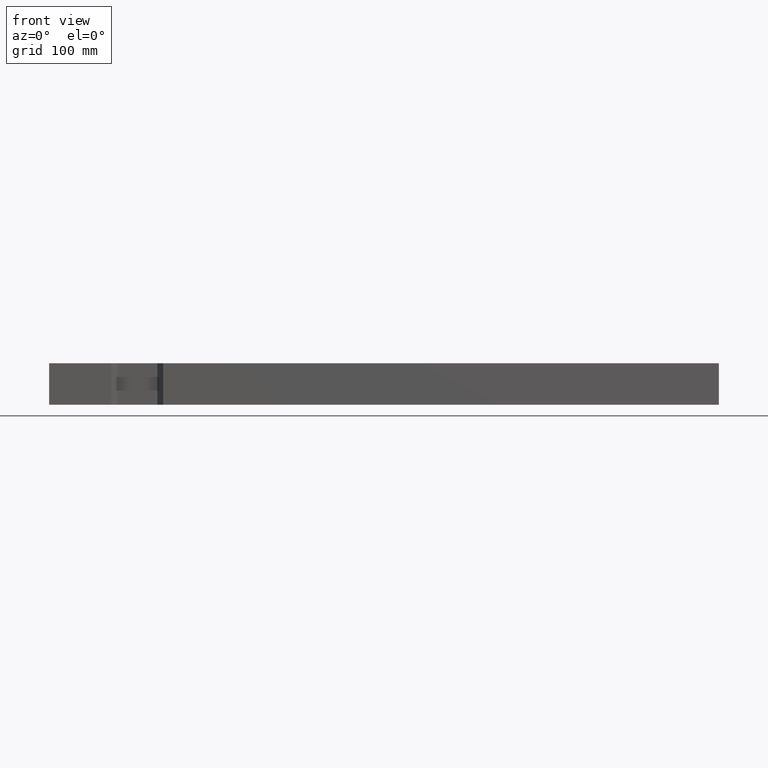
[diagram: clean part render]
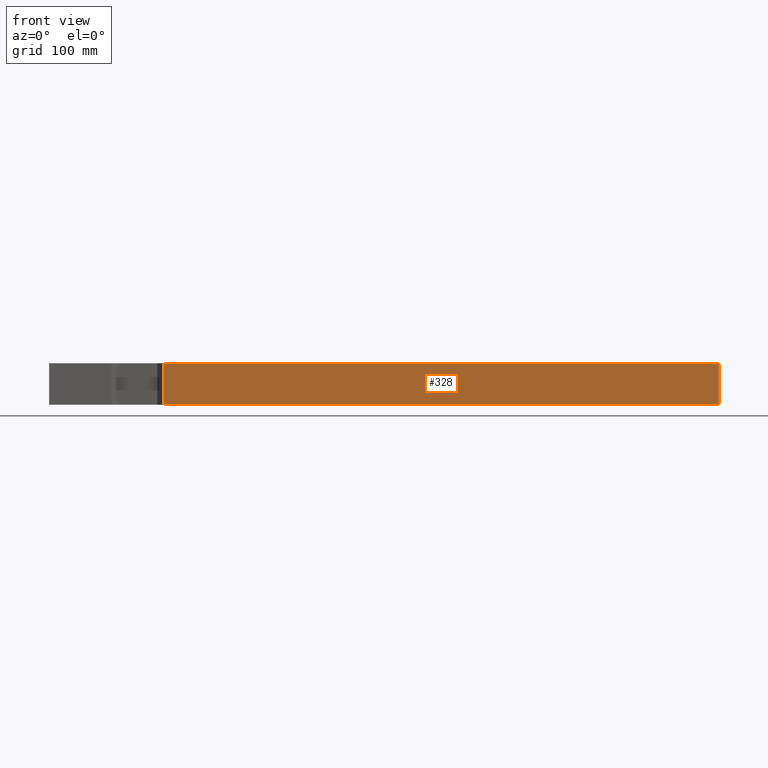
[diagram: same view with one face highlighted and labeled with its STEP entity id]
A machine part, front view. The second image highlights one B-rep face of the part: STEP entity #328.
In plain terms, the highlighted planar face has unit normal (0, -1, 0).
Its self-contained STEP definition (entity closure, byte-faithful):
#22=FACE_OUTER_BOUND($,#39,.T.);
#39=EDGE_LOOP($,(#248,#249,#250,#251));
#74=LINE($,#494,#119);
#75=LINE($,#497,#120);
#76=LINE($,#499,#121);
#77=LINE($,#500,#122);
#119=VECTOR($,#403,40.);
#120=VECTOR($,#406,535.);
#121=VECTOR($,#407,535.);
#122=VECTOR($,#408,40.);
#155=VERTEX_POINT($,#490);
#156=VERTEX_POINT($,#492);
#157=VERTEX_POINT($,#496);
#158=VERTEX_POINT($,#498);
#194=EDGE_CURVE($,#155,#156,#74,.T.);
#195=EDGE_CURVE($,#155,#157,#75,.T.);
#196=EDGE_CURVE($,#158,#156,#76,.T.);
#197=EDGE_CURVE($,#157,#158,#77,.T.);
#248=ORIENTED_EDGE($,*,*,#195,.F.);
#249=ORIENTED_EDGE($,*,*,#194,.T.);
#250=ORIENTED_EDGE($,*,*,#196,.F.);
#251=ORIENTED_EDGE($,*,*,#197,.F.);
#311=PLANE($,#348);
#328=ADVANCED_FACE($,(#22),#311,.T.);
#348=AXIS2_PLACEMENT_3D($,#495,#404,#405);
#403=DIRECTION($,(0.,0.,1.));
#404=DIRECTION('center_axis',(2.65623452620598E-016,-1.,0.));
#405=DIRECTION('ref_axis',(1.,0.,0.));
#406=DIRECTION($,(-1.,-2.65623452620598E-016,0.));
#407=DIRECTION($,(1.,2.65623452620598E-016,0.));
#408=DIRECTION($,(0.,0.,1.));
#490=CARTESIAN_POINT('',(465.968855668604,-160.346020761246,0.));
#492=CARTESIAN_POINT('',(465.968855668604,-160.346020761246,40.));
#494=CARTESIAN_POINT($,(465.968855668604,-160.346020761246,0.));
#495=CARTESIAN_POINT('Origin',(-69.0311443313963,-160.346020761246,0.));
#496=CARTESIAN_POINT('',(-69.0311443313964,-160.346020761246,0.));
#497=CARTESIAN_POINT($,(465.968855668604,-160.346020761246,0.));
#498=CARTESIAN_POINT('',(-69.0311443313964,-160.346020761246,40.));
#499=CARTESIAN_POINT($,(465.968855668604,-160.346020761246,40.));
#500=CARTESIAN_POINT($,(-69.0311443313964,-160.346020761246,0.));